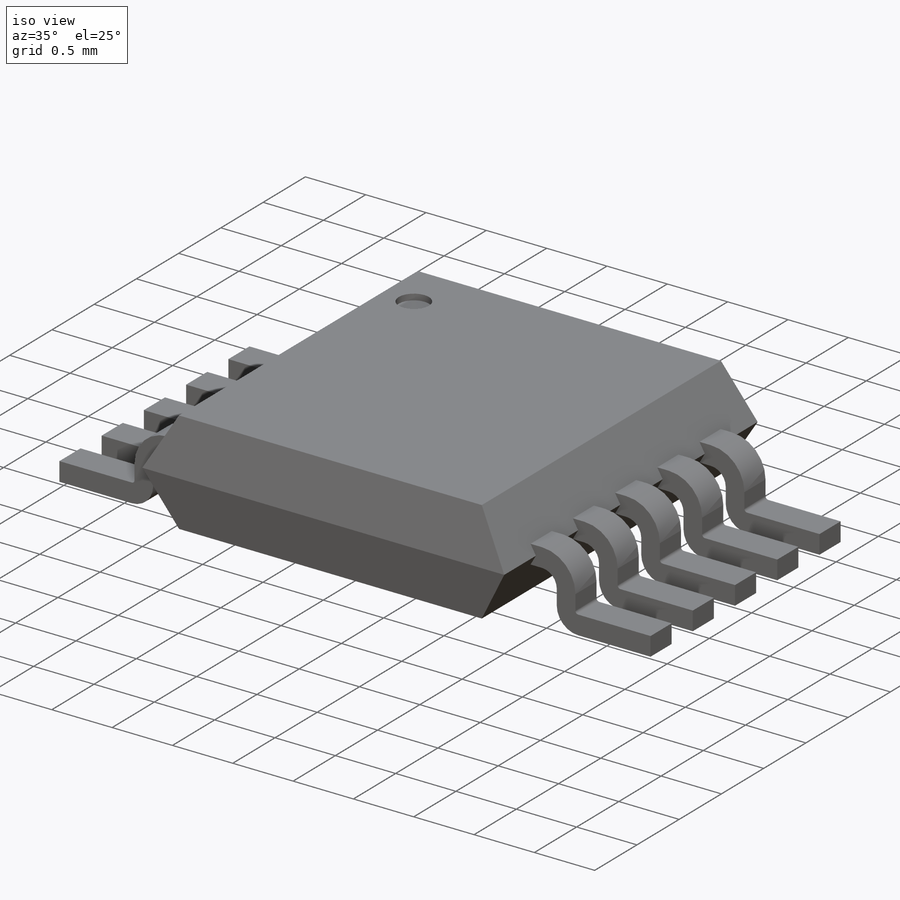
[diagram: iso view]
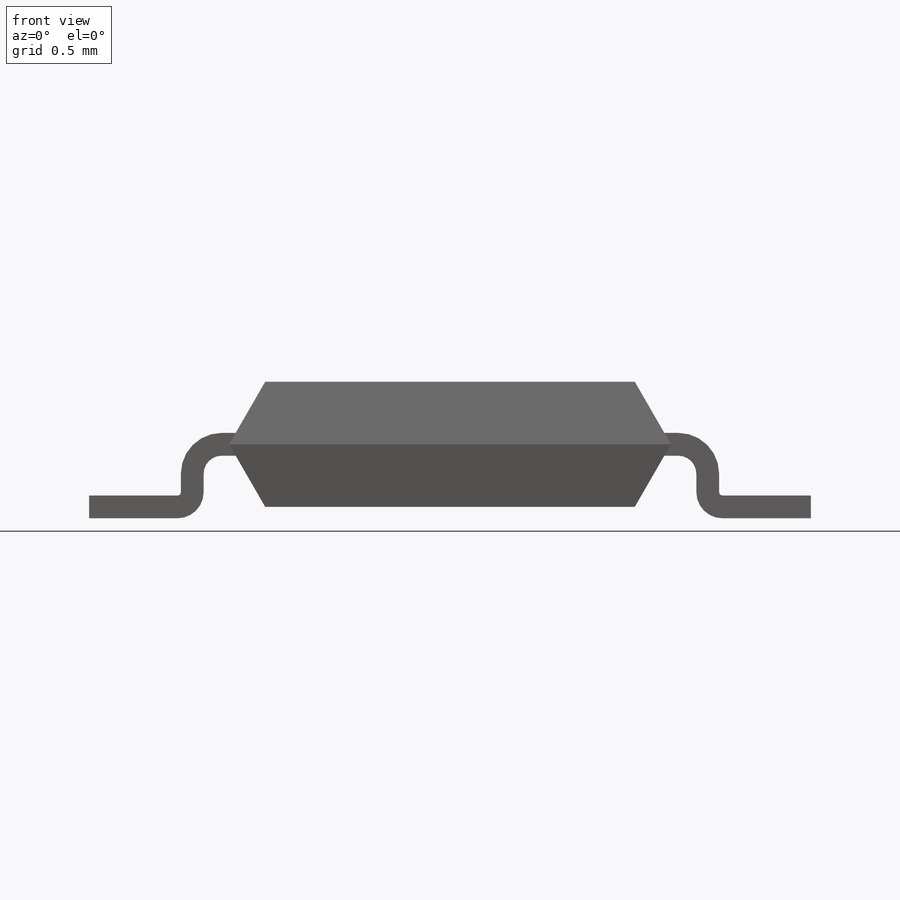
[diagram: front view]
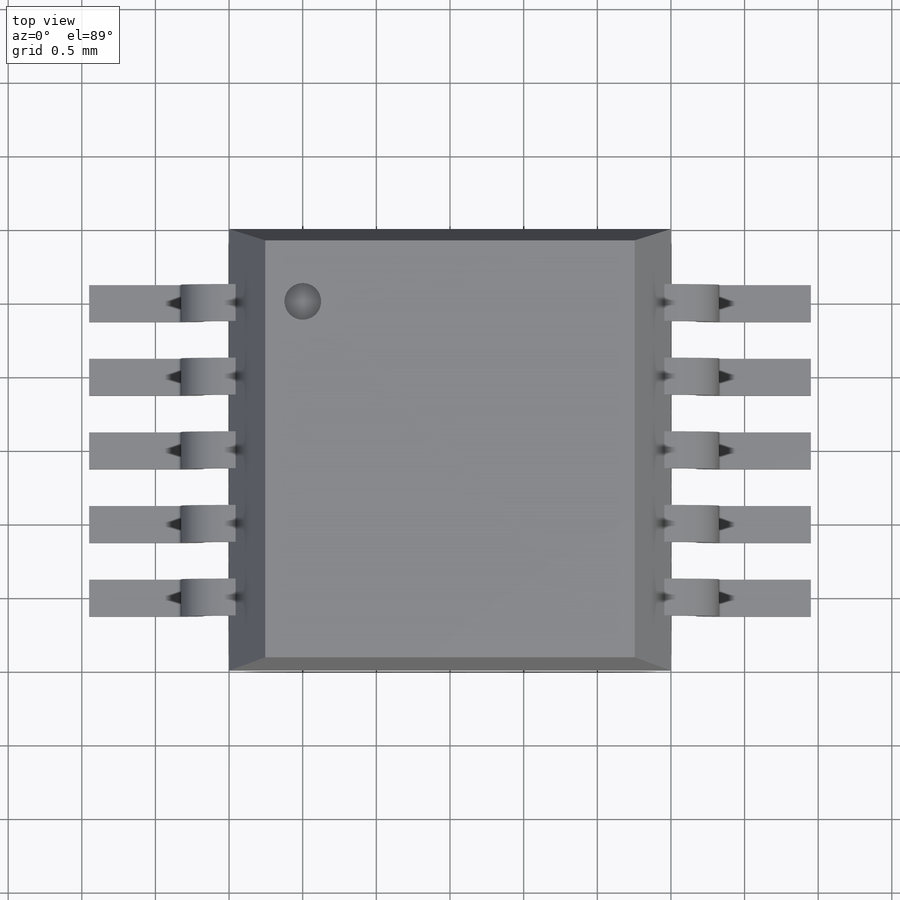
[diagram: top view]
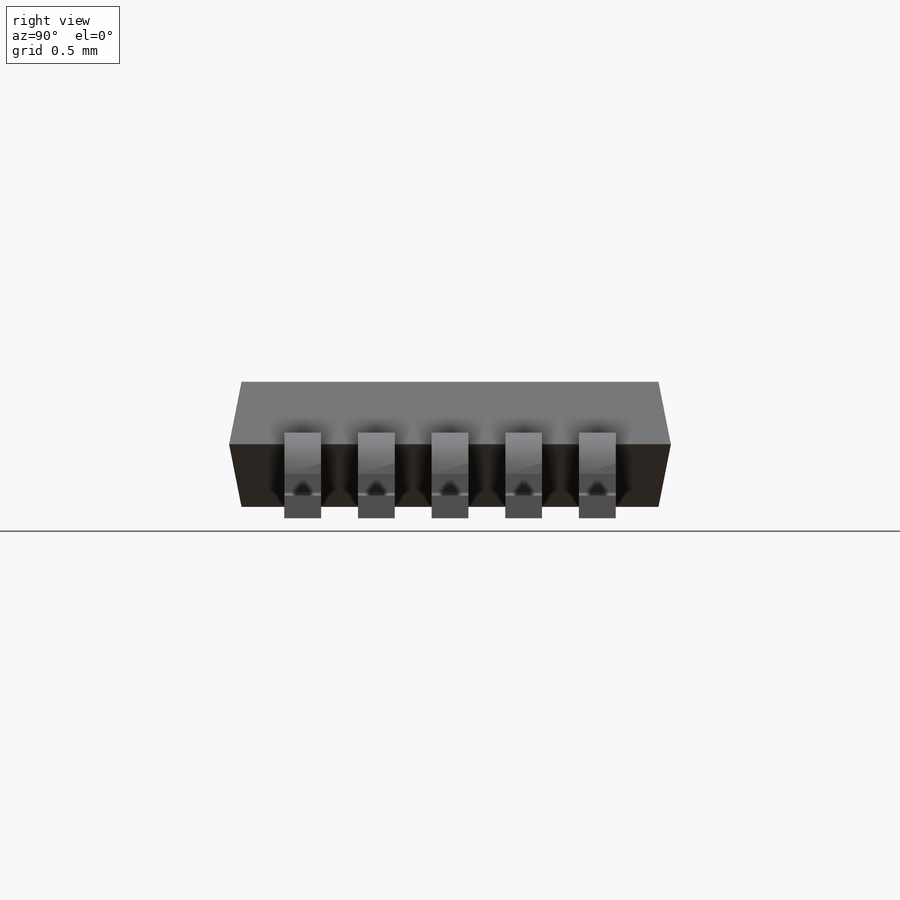
[diagram: right view]
SOLIDWORKS PART (.sldprt)
format: sldprt  version: not decoded by parser v0  size: 319,488 bytes
history: native  units: mm
features: sketch x4, mirror x4, material x1, extrude x1, sweep x1, pattern_linear x1, cut_extrude x1 (+11 scaffold rows collapsed)
feature tree (24):
  scaffold x11  (default folders/planes/origin — collapsed)
  material  "Material <not specified>"
  sketch  "Sketch1"  dims[D1=3.0mm]
  extrude  "Boss-Extrude1"  Depth=0.85mm
  sketch  "Sketch2"  dims[c1.D4=0.1mm c1.D5=0.2mm c1.D1=2.45mm c1.D2=0.1mm c2.D1=~0.706285mm c3.D1=0.0deg c3.D2=0.1mm c4.D1=0.1mm c4.D2=2.45mm c4.D3=0.6mm c4.D4=~0.786116mm c5.D4=8.0deg c5.D3=0.6mm]
  sketch  "Sketch3"  dims[D1=0.155mm D2=0.25mm]
  sweep  "Sweep9"
  pattern_linear  "LPattern1"  Count1=3 Count2=3 Spacing1=0.5mm Spacing2=0.5mm
  mirror  "Mirror1"
  sketch  "Sketch4"  dims[D1=0.25mm]
  cut_extrude  "Cut-Extrude1"  Depth=0.05mm
  mirror  "Draft6"
  mirror  "Draft7"
  mirror  "Draft8"
decode coverage: 7 of 12 modeling features carry decoded parameters
note: ~ marks probable driven/reference dimensions
note: suppression state not decoded; provenance and decode notes live in map.json
